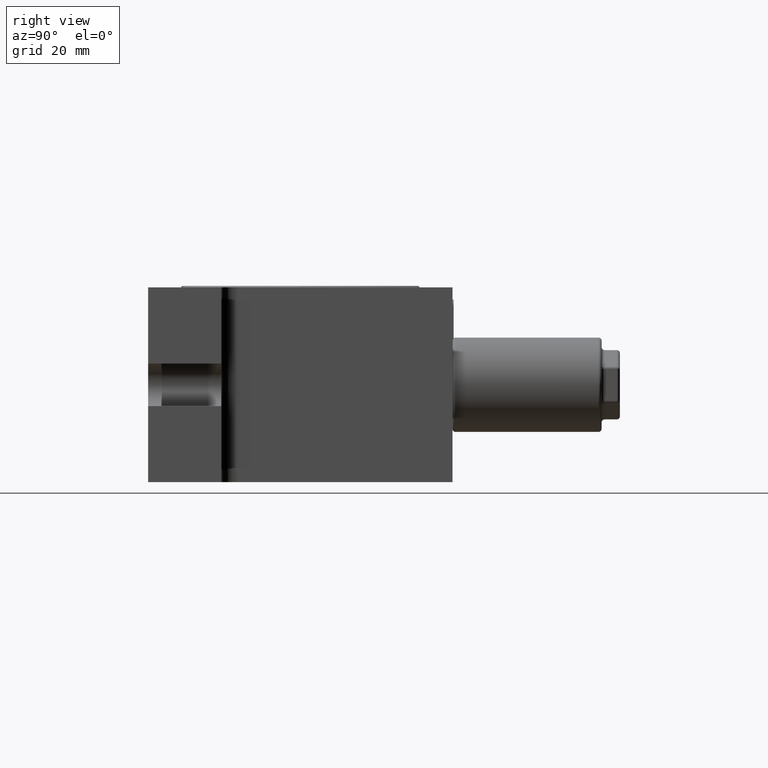
[diagram: clean part render]
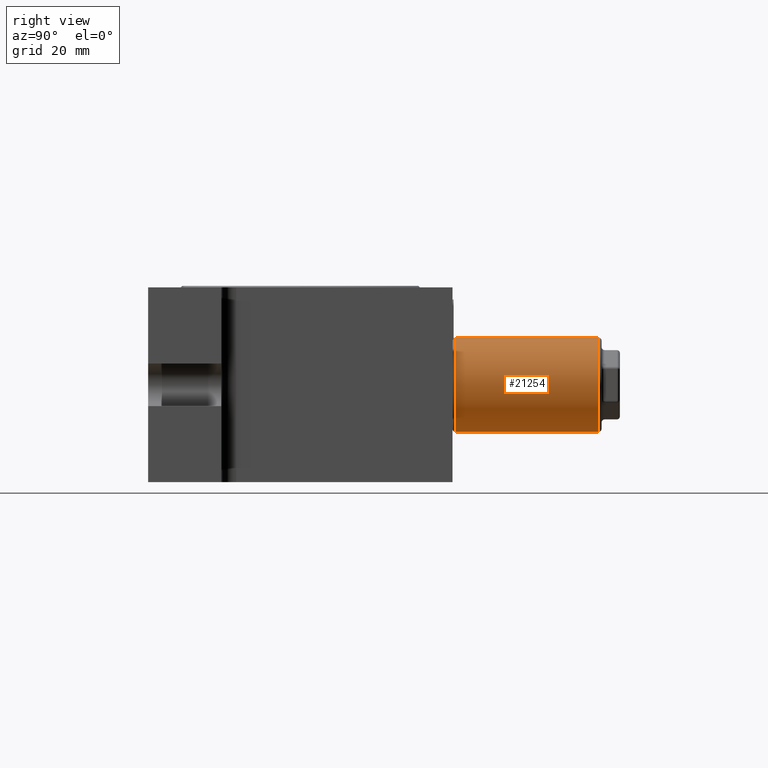
[diagram: same view with one face highlighted and labeled with its STEP entity id]
A machine part, right view. The second image highlights one B-rep face of the part: STEP entity #21254.
In plain terms, the highlighted cylindrical surface (partial cylindrical patch) has radius 7.75 mm, axis along (0, -1, -0).
Its self-contained STEP definition (entity closure, byte-faithful):
#372 = ORIENTED_EDGE ( 'NONE', *, *, #10362, .F. ) ;
#476 = CARTESIAN_POINT ( 'NONE',  ( 14.24999999999999800, 49.50000000000002100, -7.750000000000010700 ) ) ;
#1057 = EDGE_CURVE ( 'NONE', #20981, #25756, #11928, .T. ) ;
#1937 = EDGE_CURVE ( 'NONE', #8271, #20981, #15237, .T. ) ;
#2060 = ORIENTED_EDGE ( 'NONE', *, *, #22050, .F. ) ;
#2107 = LINE ( 'NONE', #25707, #3024 ) ;
#2613 = CIRCLE ( 'NONE', #6261, 7.750000000000003600 ) ;
#2728 = EDGE_CURVE ( 'NONE', #3398, #3402, #8611, .T. ) ;
#3024 = VECTOR ( 'NONE', #21753, 1000.000000000000000 ) ;
#3088 = VECTOR ( 'NONE', #9211, 1000.000000000000000 ) ;
#3102 = DIRECTION ( 'NONE',  ( 5.228563909572968500E-017, -1.000000000000000000, -2.111368100172858900E-017 ) ) ;
#3137 = VECTOR ( 'NONE', #12382, 1000.000000000000000 ) ;
#3398 = VERTEX_POINT ( 'NONE', #19214 ) ;
#3402 = VERTEX_POINT ( 'NONE', #21410 ) ;
#3458 = ORIENTED_EDGE ( 'NONE', *, *, #13597, .F. ) ;
#3822 = ORIENTED_EDGE ( 'NONE', *, *, #20487, .T. ) ;
#4091 = VERTEX_POINT ( 'NONE', #16106 ) ;
#4316 = DIRECTION ( 'NONE',  ( -5.228563909572968500E-017, 1.000000000000000000, 2.111368100172858900E-017 ) ) ;
#4495 = CARTESIAN_POINT ( 'NONE',  ( 14.24999999999998400, 37.00000000000001400, 7.750000000000000000 ) ) ;
#4586 = AXIS2_PLACEMENT_3D ( 'NONE', #24287, #4316, #12383 ) ;
#4963 = LINE ( 'NONE', #14581, #3088 ) ;
#5434 = CARTESIAN_POINT ( 'NONE',  ( 14.25000000000000400, 49.50000000000002100, -7.750000000000000000 ) ) ;
#5535 = CARTESIAN_POINT ( 'NONE',  ( 14.24999999999998600, 49.50000000000002100, 7.750000000000007100 ) ) ;
#5583 = VERTEX_POINT ( 'NONE', #16348 ) ;
#5642 = VECTOR ( 'NONE', #11694, 1000.000000000000000 ) ;
#5855 = DIRECTION ( 'NONE',  ( -5.228563909572968500E-017, 1.000000000000000000, 2.111368100172858900E-017 ) ) ;
#5870 = VECTOR ( 'NONE', #22381, 1000.000000000000000 ) ;
#6246 = CARTESIAN_POINT ( 'NONE',  ( 14.24999999999999600, 49.50000000000002100, -6.938893903907228400E-015 ) ) ;
#6261 = AXIS2_PLACEMENT_3D ( 'NONE', #17087, #3102, #17009 ) ;
#6889 = DIRECTION ( 'NONE',  ( 5.228563909572968500E-017, -1.000000000000000000, -2.111368100172858900E-017 ) ) ;
#6929 = CARTESIAN_POINT ( 'NONE',  ( 14.24999999999999800, 49.50000000000002100, -7.750000000000010700 ) ) ;
#6988 = VECTOR ( 'NONE', #5855, 1000.000000000000000 ) ;
#7211 = VERTEX_POINT ( 'NONE', #21989 ) ;
#7603 = DIRECTION ( 'NONE',  ( -5.228563909572968500E-017, 1.000000000000000000, 2.111368100172858900E-017 ) ) ;
#7627 = CARTESIAN_POINT ( 'NONE',  ( 14.24999999999999500, 49.50000000000002100, 7.749999999999996400 ) ) ;
#7755 = CARTESIAN_POINT ( 'NONE',  ( 14.24999999999999800, 49.50000000000002100, -7.750000000000010700 ) ) ;
#7931 = VERTEX_POINT ( 'NONE', #8977 ) ;
#7949 = LINE ( 'NONE', #25737, #6988 ) ;
#8065 = ORIENTED_EDGE ( 'NONE', *, *, #18819, .T. ) ;
#8271 = VERTEX_POINT ( 'NONE', #21121 ) ;
#8388 = EDGE_CURVE ( 'NONE', #7211, #23373, #24028, .T. ) ;
#8611 = CIRCLE ( 'NONE', #4586, 7.750000000000003600 ) ;
#8802 = LINE ( 'NONE', #7755, #5642 ) ;
#8977 = CARTESIAN_POINT ( 'NONE',  ( 14.24999999999998400, 39.00000000000001400, 7.750000000000007100 ) ) ;
#9211 = DIRECTION ( 'NONE',  ( 5.228563909572968500E-017, -1.000000000000000000, -2.111368100172858900E-017 ) ) ;
#9304 = VECTOR ( 'NONE', #16539, 1000.000000000000000 ) ;
#9963 = VECTOR ( 'NONE', #10963, 1000.000000000000000 ) ;
#10240 = EDGE_CURVE ( 'NONE', #25871, #4091, #23922, .T. ) ;
#10324 = CARTESIAN_POINT ( 'NONE',  ( 14.25000000000000400, 49.50000000000002100, -7.750000000000000000 ) ) ;
#10362 = EDGE_CURVE ( 'NONE', #5583, #12039, #7949, .T. ) ;
#10661 = VECTOR ( 'NONE', #7603, 1000.000000000000000 ) ;
#10963 = DIRECTION ( 'NONE',  ( 5.228563909572968500E-017, -1.000000000000000000, -2.111368100172858900E-017 ) ) ;
#11105 = ORIENTED_EDGE ( 'NONE', *, *, #10240, .F. ) ;
#11597 = CARTESIAN_POINT ( 'NONE',  ( 14.24999999999999300, 43.00000000000001400, -7.750000000000007100 ) ) ;
#11694 = DIRECTION ( 'NONE',  ( 5.228563909572968500E-017, -1.000000000000000000, -2.111368100172858900E-017 ) ) ;
#11928 = LINE ( 'NONE', #24766, #15665 ) ;
#11968 = LINE ( 'NONE', #21590, #10661 ) ;
#12002 = ORIENTED_EDGE ( 'NONE', *, *, #24250, .T. ) ;
#12029 = CARTESIAN_POINT ( 'NONE',  ( 14.25000000000000000, 33.00000000000000700, -7.749999999999985800 ) ) ;
#12039 = VERTEX_POINT ( 'NONE', #19676 ) ;
#12382 = DIRECTION ( 'NONE',  ( 5.228563909572968500E-017, -1.000000000000000000, -2.111368100172858900E-017 ) ) ;
#12383 = DIRECTION ( 'NONE',  ( 2.238352872228137200E-016, 0.0000000000000000000, -1.000000000000000000 ) ) ;
#12658 = VERTEX_POINT ( 'NONE', #4495 ) ;
#12894 = EDGE_CURVE ( 'NONE', #12658, #7931, #11968, .T. ) ;
#13201 = VECTOR ( 'NONE', #6889, 1000.000000000000000 ) ;
#13298 = CARTESIAN_POINT ( 'NONE',  ( 14.24999999999999300, 31.00000000000000700, -7.750000000000000000 ) ) ;
#13309 = EDGE_CURVE ( 'NONE', #25756, #25871, #8802, .T. ) ;
#13597 = EDGE_CURVE ( 'NONE', #19945, #3402, #20659, .T. ) ;
#13963 = LINE ( 'NONE', #10324, #5870 ) ;
#14073 = EDGE_CURVE ( 'NONE', #12658, #7211, #4963, .T. ) ;
#14093 = LINE ( 'NONE', #18860, #13201 ) ;
#14321 = ORIENTED_EDGE ( 'NONE', *, *, #17676, .T. ) ;
#14564 = EDGE_CURVE ( 'NONE', #19945, #18704, #13963, .T. ) ;
#14581 = CARTESIAN_POINT ( 'NONE',  ( 14.24999999999999500, 49.50000000000002100, 7.749999999999996400 ) ) ;
#14729 = ORIENTED_EDGE ( 'NONE', *, *, #12894, .F. ) ;
#15237 = LINE ( 'NONE', #6929, #9963 ) ;
#15665 = VECTOR ( 'NONE', #24503, 1000.000000000000000 ) ;
#15845 = AXIS2_PLACEMENT_3D ( 'NONE', #6246, #22405, #20405 ) ;
#15898 = ORIENTED_EDGE ( 'NONE', *, *, #14564, .T. ) ;
#15935 = ORIENTED_EDGE ( 'NONE', *, *, #2728, .T. ) ;
#16013 = ORIENTED_EDGE ( 'NONE', *, *, #14073, .T. ) ;
#16106 = CARTESIAN_POINT ( 'NONE',  ( 14.24999999999999300, 37.00000000000001400, -7.750000000000000000 ) ) ;
#16348 = CARTESIAN_POINT ( 'NONE',  ( 14.24999999999998900, 43.00000000000001400, 7.750000000000000000 ) ) ;
#16539 = DIRECTION ( 'NONE',  ( 5.228563909572968500E-017, -1.000000000000000000, -2.111368100172858900E-017 ) ) ;
#16882 = CYLINDRICAL_SURFACE ( 'NONE', #15845, 7.750000000000003600 ) ;
#17009 = DIRECTION ( 'NONE',  ( 2.238352872228137200E-016, 0.0000000000000000000, -1.000000000000000000 ) ) ;
#17087 = CARTESIAN_POINT ( 'NONE',  ( 14.24999999999999600, 49.00000000000002100, -6.938893903907228400E-015 ) ) ;
#17521 = VECTOR ( 'NONE', #25752, 1000.000000000000000 ) ;
#17676 = EDGE_CURVE ( 'NONE', #18289, #12039, #22540, .T. ) ;
#17921 = CARTESIAN_POINT ( 'NONE',  ( 14.24999999999998600, 31.00000000000000700, 7.749999999999985800 ) ) ;
#17984 = CARTESIAN_POINT ( 'NONE',  ( 14.24999999999999500, 49.00000000000002100, 7.749999999999992900 ) ) ;
#18199 = ORIENTED_EDGE ( 'NONE', *, *, #8388, .T. ) ;
#18280 = VECTOR ( 'NONE', #25470, 1000.000000000000000 ) ;
#18289 = VERTEX_POINT ( 'NONE', #17984 ) ;
#18421 = EDGE_LOOP ( 'NONE', ( #20159, #12002, #14321, #372, #3822, #14729, #16013, #18199, #8065, #15935, #3458, #15898, #2060, #11105, #21440, #22836 ) ) ;
#18704 = VERTEX_POINT ( 'NONE', #12029 ) ;
#18819 = EDGE_CURVE ( 'NONE', #23373, #3398, #24015, .T. ) ;
#18860 = CARTESIAN_POINT ( 'NONE',  ( 14.24999999999999500, 49.50000000000002100, 7.749999999999996400 ) ) ;
#19214 = CARTESIAN_POINT ( 'NONE',  ( 14.24999999999999500, 25.50000000000000400, 7.750000000000000000 ) ) ;
#19261 = CARTESIAN_POINT ( 'NONE',  ( 14.24999999999999300, 45.00000000000002100, -7.750000000000000000 ) ) ;
#19676 = CARTESIAN_POINT ( 'NONE',  ( 14.24999999999998900, 45.00000000000002100, 7.750000000000007100 ) ) ;
#19945 = VERTEX_POINT ( 'NONE', #13298 ) ;
#20159 = ORIENTED_EDGE ( 'NONE', *, *, #1937, .F. ) ;
#20405 = DIRECTION ( 'NONE',  ( -2.238352872228137200E-016, 0.0000000000000000000, 1.000000000000000000 ) ) ;
#20487 = EDGE_CURVE ( 'NONE', #5583, #7931, #14093, .T. ) ;
#20659 = LINE ( 'NONE', #476, #3137 ) ;
#20981 = VERTEX_POINT ( 'NONE', #19261 ) ;
#21121 = CARTESIAN_POINT ( 'NONE',  ( 14.24999999999999800, 49.00000000000002100, -7.750000000000007100 ) ) ;
#21254 = ADVANCED_FACE ( 'NONE', ( #24112 ), #16882, .T. ) ;
#21410 = CARTESIAN_POINT ( 'NONE',  ( 14.24999999999999800, 25.50000000000000400, -7.750000000000000000 ) ) ;
#21440 = ORIENTED_EDGE ( 'NONE', *, *, #13309, .F. ) ;
#21590 = CARTESIAN_POINT ( 'NONE',  ( 14.24999999999998600, 49.50000000000002100, 7.750000000000007100 ) ) ;
#21753 = DIRECTION ( 'NONE',  ( 5.228563909572968500E-017, -1.000000000000000000, -2.111368100172858900E-017 ) ) ;
#21989 = CARTESIAN_POINT ( 'NONE',  ( 14.24999999999998900, 33.00000000000000700, 7.750000000000014200 ) ) ;
#22050 = EDGE_CURVE ( 'NONE', #4091, #18704, #2107, .T. ) ;
#22381 = DIRECTION ( 'NONE',  ( -5.228563909572968500E-017, 1.000000000000000000, 2.111368100172858900E-017 ) ) ;
#22405 = DIRECTION ( 'NONE',  ( 5.228563909572968500E-017, -1.000000000000000000, -2.111368100172858900E-017 ) ) ;
#22540 = LINE ( 'NONE', #7627, #17521 ) ;
#22585 = CARTESIAN_POINT ( 'NONE',  ( 14.24999999999999500, 49.50000000000002100, 7.749999999999996400 ) ) ;
#22836 = ORIENTED_EDGE ( 'NONE', *, *, #1057, .F. ) ;
#23373 = VERTEX_POINT ( 'NONE', #17921 ) ;
#23674 = CARTESIAN_POINT ( 'NONE',  ( 14.24999999999999300, 39.00000000000001400, -7.750000000000000000 ) ) ;
#23922 = LINE ( 'NONE', #5434, #18280 ) ;
#24015 = LINE ( 'NONE', #22585, #9304 ) ;
#24028 = LINE ( 'NONE', #5535, #24950 ) ;
#24112 = FACE_OUTER_BOUND ( 'NONE', #18421, .T. ) ;
#24250 = EDGE_CURVE ( 'NONE', #8271, #18289, #2613, .T. ) ;
#24287 = CARTESIAN_POINT ( 'NONE',  ( 14.25000000000000000, 25.50000000000000400, 0.0000000000000000000 ) ) ;
#24503 = DIRECTION ( 'NONE',  ( 5.228563909572968500E-017, -1.000000000000000000, -2.111368100172858900E-017 ) ) ;
#24766 = CARTESIAN_POINT ( 'NONE',  ( 14.25000000000000400, 49.50000000000002100, -7.750000000000000000 ) ) ;
#24950 = VECTOR ( 'NONE', #25416, 1000.000000000000000 ) ;
#25416 = DIRECTION ( 'NONE',  ( 5.228563909572968500E-017, -1.000000000000000000, -2.111368100172858900E-017 ) ) ;
#25470 = DIRECTION ( 'NONE',  ( 5.228563909572968500E-017, -1.000000000000000000, -2.111368100172858900E-017 ) ) ;
#25707 = CARTESIAN_POINT ( 'NONE',  ( 14.24999999999999800, 49.50000000000002100, -7.750000000000010700 ) ) ;
#25737 = CARTESIAN_POINT ( 'NONE',  ( 14.24999999999998600, 49.50000000000002100, 7.750000000000007100 ) ) ;
#25752 = DIRECTION ( 'NONE',  ( 5.228563909572968500E-017, -1.000000000000000000, -2.111368100172858900E-017 ) ) ;
#25756 = VERTEX_POINT ( 'NONE', #11597 ) ;
#25871 = VERTEX_POINT ( 'NONE', #23674 ) ;